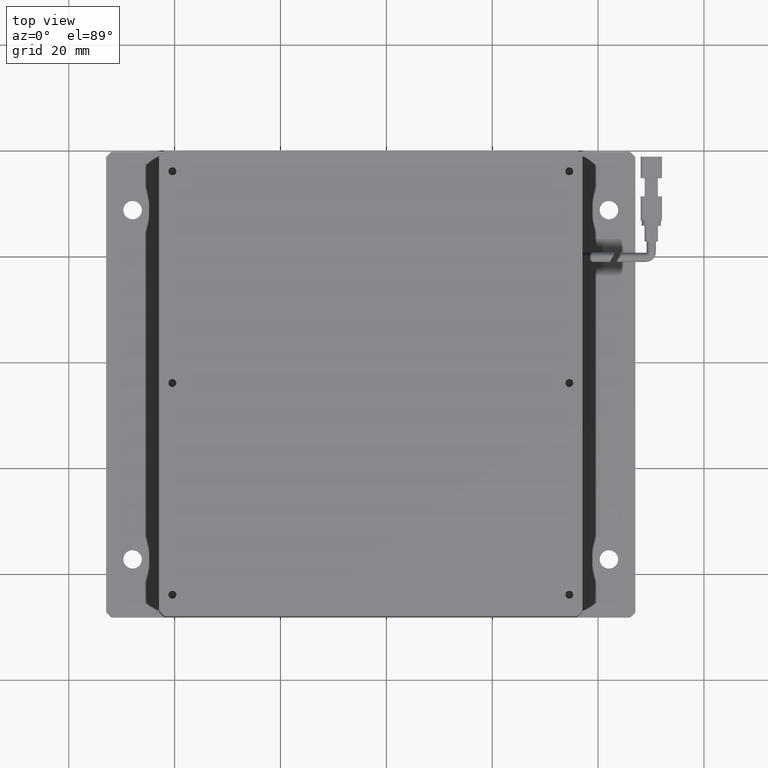
[diagram: clean part render]
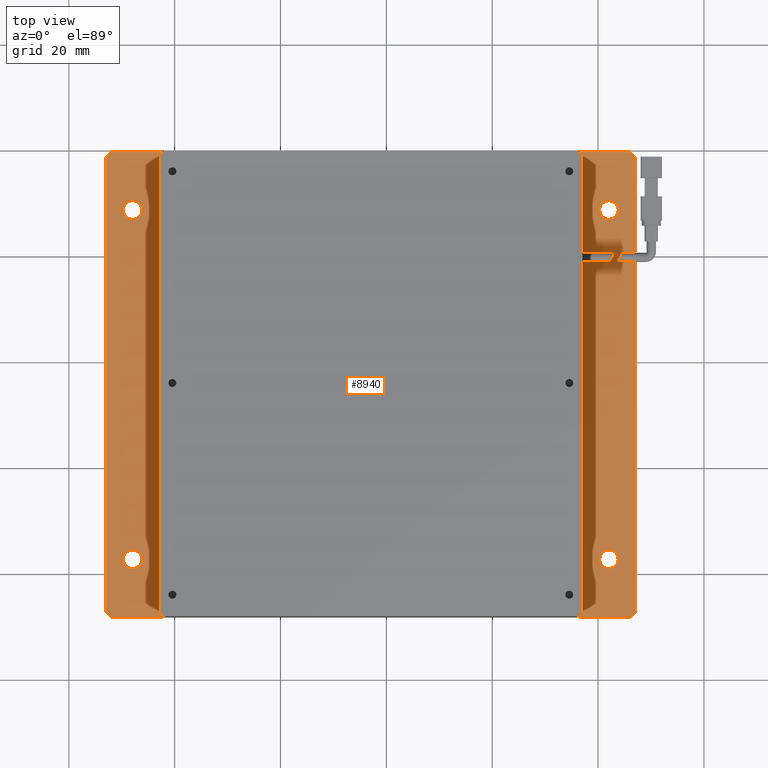
[diagram: same view with one face highlighted and labeled with its STEP entity id]
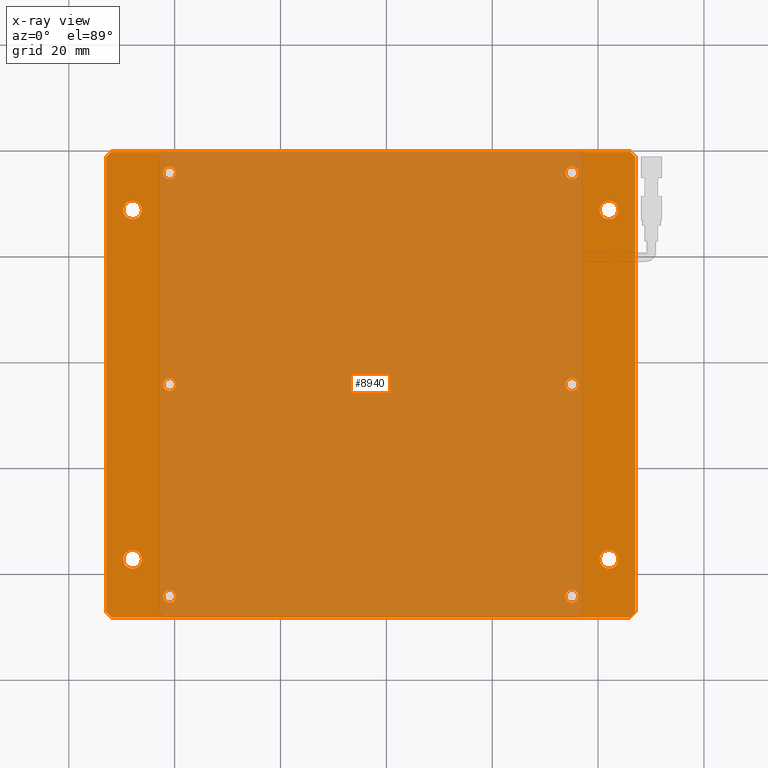
[diagram: x-ray of the same camera — body ghosted, the highlighted face saturated]
A machine part, top view. The second image highlights one B-rep face of the part: STEP entity #8940.
The next image is the same camera in x-ray: the body ghosted, the highlighted face saturated — about 80% of this face is hidden behind the body in this view.
In plain terms, the highlighted planar face has unit normal (0, 0, -1).
Its self-contained STEP definition (entity closure, byte-faithful):
#130 = CARTESIAN_POINT ( 'NONE',  ( -26.19768995799927000, 28.79992363497522900, -4.547577592273199800E-012 ) ) ;
#177 = ORIENTED_EDGE ( 'NONE', *, *, #17659, .F. ) ;
#213 = EDGE_LOOP ( 'NONE', ( #13086, #13828 ) ) ;
#225 = EDGE_CURVE ( 'NONE', #12219, #12978, #4248, .T. ) ;
#526 = EDGE_CURVE ( 'NONE', #16283, #9620, #16721, .T. ) ;
#528 = DIRECTION ( 'NONE',  ( -1.000000000000000000, 0.0000000000000000000, 0.0000000000000000000 ) ) ;
#623 = EDGE_LOOP ( 'NONE', ( #5389, #15805 ) ) ;
#740 = CARTESIAN_POINT ( 'NONE',  ( 56.25231004200073000, 35.79992363497522200, -4.547577592273199800E-012 ) ) ;
#770 = DIRECTION ( 'NONE',  ( 0.0000000000000000000, 0.0000000000000000000, 1.000000000000000000 ) ) ;
#798 = CARTESIAN_POINT ( 'NONE',  ( -20.94768995799925200, -4.200076365024784800, -4.547577592273199800E-012 ) ) ;
#811 = CIRCLE ( 'NONE', #14607, 1.199999999999992600 ) ;
#861 = EDGE_CURVE ( 'NONE', #7947, #5493, #17013, .T. ) ;
#928 = FACE_BOUND ( 'NONE', #3378, .T. ) ;
#947 = ORIENTED_EDGE ( 'NONE', *, *, #12216, .F. ) ;
#957 = CIRCLE ( 'NONE', #13508, 1.750000000000001600 ) ;
#1042 = ORIENTED_EDGE ( 'NONE', *, *, #526, .F. ) ;
#1233 = CARTESIAN_POINT ( 'NONE',  ( 55.05231004200073400, -4.200076365024784800, -4.547577592273199800E-012 ) ) ;
#1240 = EDGE_CURVE ( 'NONE', #15564, #17487, #8996, .T. ) ;
#1310 = VERTEX_POINT ( 'NONE', #2942 ) ;
#1321 = FACE_BOUND ( 'NONE', #623, .T. ) ;
#1327 = CARTESIAN_POINT ( 'NONE',  ( 63.80231004200073400, -37.20007636502477100, -4.547577592273199800E-012 ) ) ;
#1372 = CARTESIAN_POINT ( 'NONE',  ( 55.05231004200073400, -44.20007636502478500, -4.547577592273199800E-012 ) ) ;
#1552 = CIRCLE ( 'NONE', #16681, 1.199999999999992600 ) ;
#1650 = VERTEX_POINT ( 'NONE', #13686 ) ;
#1684 = DIRECTION ( 'NONE',  ( 0.0000000000000000000, 0.0000000000000000000, 1.000000000000000000 ) ) ;
#1761 = ORIENTED_EDGE ( 'NONE', *, *, #10874, .F. ) ;
#1770 = DIRECTION ( 'NONE',  ( -0.7071067811865622300, -0.7071067811865328100, 0.0000000000000000000 ) ) ;
#1807 = VERTEX_POINT ( 'NONE', #9479 ) ;
#1902 = DIRECTION ( 'NONE',  ( 0.0000000000000000000, 0.0000000000000000000, 1.000000000000000000 ) ) ;
#1927 = ORIENTED_EDGE ( 'NONE', *, *, #8487, .F. ) ;
#2037 = CIRCLE ( 'NONE', #6369, 1.749999999999998000 ) ;
#2076 = AXIS2_PLACEMENT_3D ( 'NONE', #12731, #4494, #14125 ) ;
#2257 = VERTEX_POINT ( 'NONE', #4385 ) ;
#2285 = AXIS2_PLACEMENT_3D ( 'NONE', #3549, #13223, #4936 ) ;
#2318 = CIRCLE ( 'NONE', #5484, 1.749999999999998000 ) ;
#2368 = CARTESIAN_POINT ( 'NONE',  ( -26.19768995799929500, -37.20007636502477100, -4.547577592273199800E-012 ) ) ;
#2442 = CARTESIAN_POINT ( 'NONE',  ( 67.05231004200074100, -47.20007636502479900, -4.547577592273199800E-012 ) ) ;
#2503 = CARTESIAN_POINT ( 'NONE',  ( -32.94768995799925900, -47.20007636502478500, -4.547577592273199800E-012 ) ) ;
#2605 = DIRECTION ( 'NONE',  ( -1.000000000000000000, 0.0000000000000000000, 0.0000000000000000000 ) ) ;
#2750 = DIRECTION ( 'NONE',  ( -1.000000000000000000, 0.0000000000000000000, 0.0000000000000000000 ) ) ;
#2794 = VECTOR ( 'NONE', #2837, 1000.000000000000000 ) ;
#2837 = DIRECTION ( 'NONE',  ( 0.0000000000000000000, 1.000000000000000000, 0.0000000000000000000 ) ) ;
#2840 = DIRECTION ( 'NONE',  ( 0.0000000000000000000, 0.0000000000000000000, 1.000000000000000000 ) ) ;
#2942 = CARTESIAN_POINT ( 'NONE',  ( 56.25231004200073000, -44.20007636502478500, -4.547577592273199800E-012 ) ) ;
#3051 = DIRECTION ( 'NONE',  ( 0.0000000000000000000, 0.0000000000000000000, 1.000000000000000000 ) ) ;
#3266 = EDGE_LOOP ( 'NONE', ( #11784, #1761 ) ) ;
#3378 = EDGE_LOOP ( 'NONE', ( #15379, #12676 ) ) ;
#3497 = DIRECTION ( 'NONE',  ( 0.0000000000000000000, 0.0000000000000000000, 1.000000000000000000 ) ) ;
#3549 = CARTESIAN_POINT ( 'NONE',  ( 55.05231004200073400, 35.79992363497522200, -4.547577592273199800E-012 ) ) ;
#3582 = EDGE_CURVE ( 'NONE', #15972, #16375, #6069, .T. ) ;
#3589 = CARTESIAN_POINT ( 'NONE',  ( -22.14768995799924400, -4.200076365024784800, -4.547577592273199800E-012 ) ) ;
#3650 = CIRCLE ( 'NONE', #7855, 1.750000000000001600 ) ;
#3775 = DIRECTION ( 'NONE',  ( 0.0000000000000000000, 0.0000000000000000000, 1.000000000000000000 ) ) ;
#3916 = CIRCLE ( 'NONE', #4249, 1.199999999999992600 ) ;
#4045 = CARTESIAN_POINT ( 'NONE',  ( 60.30231004200072700, -37.20007636502477100, -4.547577592273199800E-012 ) ) ;
#4144 = LINE ( 'NONE', #12547, #11918 ) ;
#4159 = EDGE_CURVE ( 'NONE', #12978, #12219, #6439, .T. ) ;
#4235 = AXIS2_PLACEMENT_3D ( 'NONE', #798, #8988, #17258 ) ;
#4248 = CIRCLE ( 'NONE', #4235, 1.199999999999992600 ) ;
#4249 = AXIS2_PLACEMENT_3D ( 'NONE', #7540, #17195, #8923 ) ;
#4270 = CARTESIAN_POINT ( 'NONE',  ( -32.94768995799925900, 39.79992363497521500, -4.547577592273199800E-012 ) ) ;
#4306 = DIRECTION ( 'NONE',  ( -0.7071067811865426900, 0.7071067811865524600, 0.0000000000000000000 ) ) ;
#4385 = CARTESIAN_POINT ( 'NONE',  ( 63.80231004200073400, 28.79992363497521500, -4.547577592273199800E-012 ) ) ;
#4428 = EDGE_CURVE ( 'NONE', #17234, #8391, #2318, .T. ) ;
#4444 = VERTEX_POINT ( 'NONE', #10433 ) ;
#4494 = DIRECTION ( 'NONE',  ( 0.0000000000000000000, 0.0000000000000000000, 1.000000000000000000 ) ) ;
#4544 = FACE_BOUND ( 'NONE', #213, .T. ) ;
#4604 = AXIS2_PLACEMENT_3D ( 'NONE', #5946, #15563, #7315 ) ;
#4608 = AXIS2_PLACEMENT_3D ( 'NONE', #10164, #1902, #11541 ) ;
#4653 = LINE ( 'NONE', #14985, #8306 ) ;
#4657 = ORIENTED_EDGE ( 'NONE', *, *, #4159, .F. ) ;
#4662 = EDGE_CURVE ( 'NONE', #10655, #1807, #7233, .T. ) ;
#4777 = ORIENTED_EDGE ( 'NONE', *, *, #861, .F. ) ;
#4823 = VECTOR ( 'NONE', #1770, 1000.000000000000000 ) ;
#4901 = DIRECTION ( 'NONE',  ( 0.0000000000000000000, 0.0000000000000000000, 1.000000000000000000 ) ) ;
#4936 = DIRECTION ( 'NONE',  ( -1.000000000000000000, 0.0000000000000000000, 0.0000000000000000000 ) ) ;
#4963 = FACE_BOUND ( 'NONE', #3266, .T. ) ;
#5224 = CIRCLE ( 'NONE', #2285, 1.199999999999992600 ) ;
#5262 = CARTESIAN_POINT ( 'NONE',  ( 53.85231004200074500, 35.79992363497522200, -4.547577592273199800E-012 ) ) ;
#5346 = CARTESIAN_POINT ( 'NONE',  ( -22.14768995799924800, 35.79992363497520800, -4.547577592273199800E-012 ) ) ;
#5371 = EDGE_CURVE ( 'NONE', #10395, #16103, #15562, .T. ) ;
#5389 = ORIENTED_EDGE ( 'NONE', *, *, #9636, .F. ) ;
#5457 = DIRECTION ( 'NONE',  ( -1.000000000000000000, 0.0000000000000000000, -0.0000000000000000000 ) ) ;
#5467 = VECTOR ( 'NONE', #17576, 999.9999999999998900 ) ;
#5484 = AXIS2_PLACEMENT_3D ( 'NONE', #8956, #770, #10377 ) ;
#5493 = VERTEX_POINT ( 'NONE', #5984 ) ;
#5573 = EDGE_CURVE ( 'NONE', #1310, #9926, #3916, .T. ) ;
#5690 = EDGE_CURVE ( 'NONE', #10695, #16998, #957, .T. ) ;
#5696 = AXIS2_PLACEMENT_3D ( 'NONE', #13180, #4901, #12876 ) ;
#5841 = FACE_OUTER_BOUND ( 'NONE', #10317, .T. ) ;
#5946 = CARTESIAN_POINT ( 'NONE',  ( 55.05231004200073400, -4.200076365024784800, -4.547577592273199800E-012 ) ) ;
#5984 = CARTESIAN_POINT ( 'NONE',  ( -32.94768995799926600, 38.79992363497523700, -4.547577592273199800E-012 ) ) ;
#6069 = CIRCLE ( 'NONE', #5696, 1.199999999999992600 ) ;
#6137 = ORIENTED_EDGE ( 'NONE', *, *, #1240, .F. ) ;
#6159 = DIRECTION ( 'NONE',  ( 0.0000000000000000000, 0.0000000000000000000, 1.000000000000000000 ) ) ;
#6173 = EDGE_CURVE ( 'NONE', #4444, #2257, #3650, .T. ) ;
#6183 = ORIENTED_EDGE ( 'NONE', *, *, #17490, .F. ) ;
#6259 = EDGE_CURVE ( 'NONE', #16998, #10695, #7324, .T. ) ;
#6333 = CARTESIAN_POINT ( 'NONE',  ( -32.94768995799925900, 39.79992363497521500, -4.547577592273199800E-012 ) ) ;
#6369 = AXIS2_PLACEMENT_3D ( 'NONE', #15047, #6799, #16423 ) ;
#6439 = CIRCLE ( 'NONE', #10786, 1.199999999999992600 ) ;
#6567 = ORIENTED_EDGE ( 'NONE', *, *, #13271, .F. ) ;
#6735 = LINE ( 'NONE', #13576, #9994 ) ;
#6799 = DIRECTION ( 'NONE',  ( 0.0000000000000000000, 0.0000000000000000000, 1.000000000000000000 ) ) ;
#6804 = AXIS2_PLACEMENT_3D ( 'NONE', #17787, #9579, #8177 ) ;
#7226 = CARTESIAN_POINT ( 'NONE',  ( 67.05231004200074100, -47.20007636502479900, -4.547577592273199800E-012 ) ) ;
#7233 = LINE ( 'NONE', #8173, #14575 ) ;
#7315 = DIRECTION ( 'NONE',  ( -1.000000000000000000, 0.0000000000000000000, 0.0000000000000000000 ) ) ;
#7324 = CIRCLE ( 'NONE', #14304, 1.750000000000001600 ) ;
#7457 = DIRECTION ( 'NONE',  ( -0.0000000000000000000, -1.000000000000000000, -0.0000000000000000000 ) ) ;
#7540 = CARTESIAN_POINT ( 'NONE',  ( 55.05231004200073400, -44.20007636502478500, -4.547577592273199800E-012 ) ) ;
#7706 = DIRECTION ( 'NONE',  ( -1.000000000000000000, 0.0000000000000000000, -0.0000000000000000000 ) ) ;
#7805 = ORIENTED_EDGE ( 'NONE', *, *, #13373, .F. ) ;
#7844 = VERTEX_POINT ( 'NONE', #14659 ) ;
#7851 = DIRECTION ( 'NONE',  ( 0.0000000000000000000, 0.0000000000000000000, 1.000000000000000000 ) ) ;
#7855 = AXIS2_PLACEMENT_3D ( 'NONE', #12038, #3775, #13462 ) ;
#7926 = VERTEX_POINT ( 'NONE', #12120 ) ;
#7947 = VERTEX_POINT ( 'NONE', #2503 ) ;
#8135 = DIRECTION ( 'NONE',  ( 1.000000000000000000, -0.0000000000000000000, 0.0000000000000000000 ) ) ;
#8136 = AXIS2_PLACEMENT_3D ( 'NONE', #16988, #8722, #528 ) ;
#8173 = CARTESIAN_POINT ( 'NONE',  ( -32.94768995799925900, -48.20007636502478500, -4.547577592273199800E-012 ) ) ;
#8177 = DIRECTION ( 'NONE',  ( -1.000000000000000000, 0.0000000000000000000, 0.0000000000000000000 ) ) ;
#8197 = FACE_BOUND ( 'NONE', #10350, .T. ) ;
#8244 = EDGE_CURVE ( 'NONE', #16103, #10395, #13386, .T. ) ;
#8306 = VECTOR ( 'NONE', #8135, 1000.000000000000000 ) ;
#8339 = ORIENTED_EDGE ( 'NONE', *, *, #8797, .F. ) ;
#8391 = VERTEX_POINT ( 'NONE', #2368 ) ;
#8473 = LINE ( 'NONE', #7226, #4823 ) ;
#8487 = EDGE_CURVE ( 'NONE', #1650, #16283, #6735, .T. ) ;
#8620 = FACE_BOUND ( 'NONE', #9298, .T. ) ;
#8692 = CARTESIAN_POINT ( 'NONE',  ( 67.05231004200074100, 38.79992363497520800, -4.547577592273199800E-012 ) ) ;
#8722 = DIRECTION ( 'NONE',  ( 0.0000000000000000000, 0.0000000000000000000, 1.000000000000000000 ) ) ;
#8797 = EDGE_CURVE ( 'NONE', #13871, #9315, #9744, .T. ) ;
#8834 = CARTESIAN_POINT ( 'NONE',  ( -29.69768995799926600, 28.79992363497522900, -4.547577592273199800E-012 ) ) ;
#8923 = DIRECTION ( 'NONE',  ( -1.000000000000000000, 0.0000000000000000000, 0.0000000000000000000 ) ) ;
#8940 = ADVANCED_FACE ( 'NONE', ( #5841, #8620, #15939, #12280, #4963, #1321, #15511, #11873, #8197, #4544, #928 ), #14513, .F. ) ;
#8956 = CARTESIAN_POINT ( 'NONE',  ( -27.94768995799929100, -37.20007636502477100, -4.547577592273199800E-012 ) ) ;
#8988 = DIRECTION ( 'NONE',  ( 0.0000000000000000000, 0.0000000000000000000, 1.000000000000000000 ) ) ;
#8996 = CIRCLE ( 'NONE', #6804, 1.199999999999992600 ) ;
#9138 = LINE ( 'NONE', #16176, #5467 ) ;
#9282 = EDGE_CURVE ( 'NONE', #2257, #4444, #11195, .T. ) ;
#9298 = EDGE_LOOP ( 'NONE', ( #4657, #9586 ) ) ;
#9315 = VERTEX_POINT ( 'NONE', #9936 ) ;
#9346 = EDGE_LOOP ( 'NONE', ( #11027, #947 ) ) ;
#9479 = CARTESIAN_POINT ( 'NONE',  ( -31.94768995799927300, -48.20007636502478500, -4.547577592273199800E-012 ) ) ;
#9579 = DIRECTION ( 'NONE',  ( 0.0000000000000000000, 0.0000000000000000000, 1.000000000000000000 ) ) ;
#9586 = ORIENTED_EDGE ( 'NONE', *, *, #225, .F. ) ;
#9620 = VERTEX_POINT ( 'NONE', #2442 ) ;
#9636 = EDGE_CURVE ( 'NONE', #9926, #1310, #16535, .T. ) ;
#9744 = CIRCLE ( 'NONE', #8136, 1.199999999999992600 ) ;
#9926 = VERTEX_POINT ( 'NONE', #10401 ) ;
#9936 = CARTESIAN_POINT ( 'NONE',  ( -19.74768995799926300, -44.20007636502478500, -4.547577592273199800E-012 ) ) ;
#9954 = CARTESIAN_POINT ( 'NONE',  ( -20.94768995799925500, -44.20007636502478500, -4.547577592273199800E-012 ) ) ;
#9994 = VECTOR ( 'NONE', #14987, 1000.000000000000100 ) ;
#10164 = CARTESIAN_POINT ( 'NONE',  ( -27.94768995799927000, 28.79992363497522900, -4.547577592273199800E-012 ) ) ;
#10215 = CIRCLE ( 'NONE', #2076, 1.199999999999992600 ) ;
#10249 = VERTEX_POINT ( 'NONE', #15358 ) ;
#10317 = EDGE_LOOP ( 'NONE', ( #1927, #6183, #17666, #4777, #6567, #16407, #13829, #1042 ) ) ;
#10350 = EDGE_LOOP ( 'NONE', ( #11525, #17598 ) ) ;
#10377 = DIRECTION ( 'NONE',  ( -1.000000000000000000, 0.0000000000000000000, 0.0000000000000000000 ) ) ;
#10395 = VERTEX_POINT ( 'NONE', #8834 ) ;
#10401 = CARTESIAN_POINT ( 'NONE',  ( 53.85231004200074500, -44.20007636502478500, -4.547577592273199800E-012 ) ) ;
#10433 = CARTESIAN_POINT ( 'NONE',  ( 60.30231004200072700, 28.79992363497521500, -4.547577592273199800E-012 ) ) ;
#10655 = VERTEX_POINT ( 'NONE', #10829 ) ;
#10695 = VERTEX_POINT ( 'NONE', #1327 ) ;
#10786 = AXIS2_PLACEMENT_3D ( 'NONE', #14393, #6159, #15769 ) ;
#10829 = CARTESIAN_POINT ( 'NONE',  ( 66.05231004200074100, -48.20007636502478500, -4.547577592273199800E-012 ) ) ;
#10841 = DIRECTION ( 'NONE',  ( 0.0000000000000000000, 0.0000000000000000000, 1.000000000000000000 ) ) ;
#10874 = EDGE_CURVE ( 'NONE', #7926, #10249, #14582, .T. ) ;
#10974 = DIRECTION ( 'NONE',  ( 0.0000000000000000000, 0.0000000000000000000, 1.000000000000000000 ) ) ;
#11027 = ORIENTED_EDGE ( 'NONE', *, *, #3582, .F. ) ;
#11080 = CARTESIAN_POINT ( 'NONE',  ( 62.05231004200072700, -37.20007636502477100, -4.547577592273199800E-012 ) ) ;
#11195 = CIRCLE ( 'NONE', #15400, 1.750000000000001600 ) ;
#11308 = CARTESIAN_POINT ( 'NONE',  ( 62.05231004200072700, 28.79992363497521500, -4.547577592273199800E-012 ) ) ;
#11320 = DIRECTION ( 'NONE',  ( -1.000000000000000000, 0.0000000000000000000, 0.0000000000000000000 ) ) ;
#11525 = ORIENTED_EDGE ( 'NONE', *, *, #5371, .F. ) ;
#11541 = DIRECTION ( 'NONE',  ( -1.000000000000000000, 0.0000000000000000000, 0.0000000000000000000 ) ) ;
#11586 = CARTESIAN_POINT ( 'NONE',  ( -29.69768995799929100, -37.20007636502477100, -4.547577592273199800E-012 ) ) ;
#11770 = CARTESIAN_POINT ( 'NONE',  ( -27.94768995799927000, 28.79992363497522900, -4.547577592273199800E-012 ) ) ;
#11784 = ORIENTED_EDGE ( 'NONE', *, *, #12453, .F. ) ;
#11873 = FACE_BOUND ( 'NONE', #15965, .T. ) ;
#11918 = VECTOR ( 'NONE', #4306, 1000.000000000000000 ) ;
#12036 = EDGE_CURVE ( 'NONE', #9620, #10655, #8473, .T. ) ;
#12038 = CARTESIAN_POINT ( 'NONE',  ( 62.05231004200072700, 28.79992363497521500, -4.547577592273199800E-012 ) ) ;
#12120 = CARTESIAN_POINT ( 'NONE',  ( 56.25231004200073000, -4.200076365024784800, -4.547577592273199800E-012 ) ) ;
#12216 = EDGE_CURVE ( 'NONE', #16375, #15972, #5224, .T. ) ;
#12219 = VERTEX_POINT ( 'NONE', #17241 ) ;
#12280 = FACE_BOUND ( 'NONE', #14711, .T. ) ;
#12453 = EDGE_CURVE ( 'NONE', #10249, #7926, #1552, .T. ) ;
#12454 = DIRECTION ( 'NONE',  ( -1.000000000000000000, 0.0000000000000000000, 0.0000000000000000000 ) ) ;
#12547 = CARTESIAN_POINT ( 'NONE',  ( -31.94768995799927300, -48.20007636502478500, -4.547577592273199800E-012 ) ) ;
#12671 = DIRECTION ( 'NONE',  ( -1.000000000000000000, 0.0000000000000000000, 0.0000000000000000000 ) ) ;
#12676 = ORIENTED_EDGE ( 'NONE', *, *, #9282, .F. ) ;
#12731 = CARTESIAN_POINT ( 'NONE',  ( -20.94768995799925500, 35.79992363497520800, -4.547577592273199800E-012 ) ) ;
#12876 = DIRECTION ( 'NONE',  ( -1.000000000000000000, 0.0000000000000000000, 0.0000000000000000000 ) ) ;
#12978 = VERTEX_POINT ( 'NONE', #3589 ) ;
#13080 = VECTOR ( 'NONE', #7457, 1000.000000000000000 ) ;
#13086 = ORIENTED_EDGE ( 'NONE', *, *, #6259, .F. ) ;
#13157 = DIRECTION ( 'NONE',  ( -1.000000000000000000, 0.0000000000000000000, 0.0000000000000000000 ) ) ;
#13180 = CARTESIAN_POINT ( 'NONE',  ( 55.05231004200073400, 35.79992363497522200, -4.547577592273199800E-012 ) ) ;
#13223 = DIRECTION ( 'NONE',  ( 0.0000000000000000000, 0.0000000000000000000, 1.000000000000000000 ) ) ;
#13271 = EDGE_CURVE ( 'NONE', #1807, #7947, #4144, .T. ) ;
#13354 = AXIS2_PLACEMENT_3D ( 'NONE', #6333, #15921, #7706 ) ;
#13373 = EDGE_CURVE ( 'NONE', #17487, #15564, #10215, .T. ) ;
#13386 = CIRCLE ( 'NONE', #16889, 1.749999999999998000 ) ;
#13462 = DIRECTION ( 'NONE',  ( -1.000000000000000000, 0.0000000000000000000, 0.0000000000000000000 ) ) ;
#13508 = AXIS2_PLACEMENT_3D ( 'NONE', #16065, #7851, #17474 ) ;
#13576 = CARTESIAN_POINT ( 'NONE',  ( 66.05231004200074100, 39.79992363497521500, -4.547577592273199800E-012 ) ) ;
#13641 = EDGE_LOOP ( 'NONE', ( #8339, #177 ) ) ;
#13686 = CARTESIAN_POINT ( 'NONE',  ( 66.05231004200076900, 39.79992363497521500, -4.547577592273199800E-012 ) ) ;
#13828 = ORIENTED_EDGE ( 'NONE', *, *, #5690, .F. ) ;
#13829 = ORIENTED_EDGE ( 'NONE', *, *, #12036, .F. ) ;
#13871 = VERTEX_POINT ( 'NONE', #14359 ) ;
#14125 = DIRECTION ( 'NONE',  ( -1.000000000000000000, 0.0000000000000000000, 0.0000000000000000000 ) ) ;
#14304 = AXIS2_PLACEMENT_3D ( 'NONE', #11080, #2840, #12454 ) ;
#14359 = CARTESIAN_POINT ( 'NONE',  ( -22.14768995799924800, -44.20007636502478500, -4.547577592273199800E-012 ) ) ;
#14393 = CARTESIAN_POINT ( 'NONE',  ( -20.94768995799925200, -4.200076365024784800, -4.547577592273199800E-012 ) ) ;
#14513 = PLANE ( 'NONE',  #13354 ) ;
#14575 = VECTOR ( 'NONE', #5457, 1000.000000000000000 ) ;
#14582 = CIRCLE ( 'NONE', #4604, 1.199999999999992600 ) ;
#14607 = AXIS2_PLACEMENT_3D ( 'NONE', #9954, #1684, #11320 ) ;
#14659 = CARTESIAN_POINT ( 'NONE',  ( -31.94768995799925900, 39.79992363497521500, -4.547577592273199800E-012 ) ) ;
#14665 = EDGE_CURVE ( 'NONE', #5493, #7844, #9138, .T. ) ;
#14711 = EDGE_LOOP ( 'NONE', ( #7805, #6137 ) ) ;
#14725 = AXIS2_PLACEMENT_3D ( 'NONE', #1372, #10974, #2750 ) ;
#14766 = EDGE_CURVE ( 'NONE', #8391, #17234, #2037, .T. ) ;
#14985 = CARTESIAN_POINT ( 'NONE',  ( -32.94768995799925900, 39.79992363497521500, -4.547577592273199800E-012 ) ) ;
#14987 = DIRECTION ( 'NONE',  ( 0.7071067811865474600, -0.7071067811865474600, 0.0000000000000000000 ) ) ;
#15047 = CARTESIAN_POINT ( 'NONE',  ( -27.94768995799929100, -37.20007636502477100, -4.547577592273199800E-012 ) ) ;
#15358 = CARTESIAN_POINT ( 'NONE',  ( 53.85231004200074500, -4.200076365024784800, -4.547577592273199800E-012 ) ) ;
#15379 = ORIENTED_EDGE ( 'NONE', *, *, #6173, .F. ) ;
#15400 = AXIS2_PLACEMENT_3D ( 'NONE', #11308, #3051, #12671 ) ;
#15511 = FACE_BOUND ( 'NONE', #9346, .T. ) ;
#15562 = CIRCLE ( 'NONE', #4608, 1.749999999999998000 ) ;
#15563 = DIRECTION ( 'NONE',  ( 0.0000000000000000000, 0.0000000000000000000, 1.000000000000000000 ) ) ;
#15564 = VERTEX_POINT ( 'NONE', #16537 ) ;
#15769 = DIRECTION ( 'NONE',  ( -1.000000000000000000, 0.0000000000000000000, 0.0000000000000000000 ) ) ;
#15805 = ORIENTED_EDGE ( 'NONE', *, *, #5573, .F. ) ;
#15921 = DIRECTION ( 'NONE',  ( 0.0000000000000000000, 0.0000000000000000000, -1.000000000000000000 ) ) ;
#15939 = FACE_BOUND ( 'NONE', #13641, .T. ) ;
#15965 = EDGE_LOOP ( 'NONE', ( #17580, #17570 ) ) ;
#15972 = VERTEX_POINT ( 'NONE', #5262 ) ;
#16065 = CARTESIAN_POINT ( 'NONE',  ( 62.05231004200072700, -37.20007636502477100, -4.547577592273199800E-012 ) ) ;
#16103 = VERTEX_POINT ( 'NONE', #130 ) ;
#16176 = CARTESIAN_POINT ( 'NONE',  ( -32.94768995799927300, 38.79992363497520800, -4.547577592273199800E-012 ) ) ;
#16283 = VERTEX_POINT ( 'NONE', #8692 ) ;
#16375 = VERTEX_POINT ( 'NONE', #740 ) ;
#16407 = ORIENTED_EDGE ( 'NONE', *, *, #4662, .F. ) ;
#16423 = DIRECTION ( 'NONE',  ( -1.000000000000000000, 0.0000000000000000000, 0.0000000000000000000 ) ) ;
#16535 = CIRCLE ( 'NONE', #14725, 1.199999999999992600 ) ;
#16537 = CARTESIAN_POINT ( 'NONE',  ( -19.74768995799926300, 35.79992363497520800, -4.547577592273199800E-012 ) ) ;
#16681 = AXIS2_PLACEMENT_3D ( 'NONE', #1233, #10841, #2605 ) ;
#16721 = LINE ( 'NONE', #17450, #13080 ) ;
#16889 = AXIS2_PLACEMENT_3D ( 'NONE', #11770, #3497, #13157 ) ;
#16988 = CARTESIAN_POINT ( 'NONE',  ( -20.94768995799925500, -44.20007636502478500, -4.547577592273199800E-012 ) ) ;
#16998 = VERTEX_POINT ( 'NONE', #4045 ) ;
#17013 = LINE ( 'NONE', #4270, #2794 ) ;
#17195 = DIRECTION ( 'NONE',  ( 0.0000000000000000000, 0.0000000000000000000, 1.000000000000000000 ) ) ;
#17234 = VERTEX_POINT ( 'NONE', #11586 ) ;
#17241 = CARTESIAN_POINT ( 'NONE',  ( -19.74768995799926000, -4.200076365024784800, -4.547577592273199800E-012 ) ) ;
#17258 = DIRECTION ( 'NONE',  ( -1.000000000000000000, 0.0000000000000000000, 0.0000000000000000000 ) ) ;
#17450 = CARTESIAN_POINT ( 'NONE',  ( 67.05231004200074100, 39.79992363497521500, -4.547577592273199800E-012 ) ) ;
#17474 = DIRECTION ( 'NONE',  ( -1.000000000000000000, 0.0000000000000000000, 0.0000000000000000000 ) ) ;
#17487 = VERTEX_POINT ( 'NONE', #5346 ) ;
#17490 = EDGE_CURVE ( 'NONE', #7844, #1650, #4653, .T. ) ;
#17570 = ORIENTED_EDGE ( 'NONE', *, *, #14766, .F. ) ;
#17576 = DIRECTION ( 'NONE',  ( 0.7071067811865525700, 0.7071067811865425800, 0.0000000000000000000 ) ) ;
#17580 = ORIENTED_EDGE ( 'NONE', *, *, #4428, .F. ) ;
#17598 = ORIENTED_EDGE ( 'NONE', *, *, #8244, .F. ) ;
#17659 = EDGE_CURVE ( 'NONE', #9315, #13871, #811, .T. ) ;
#17666 = ORIENTED_EDGE ( 'NONE', *, *, #14665, .F. ) ;
#17787 = CARTESIAN_POINT ( 'NONE',  ( -20.94768995799925500, 35.79992363497520800, -4.547577592273199800E-012 ) ) ;